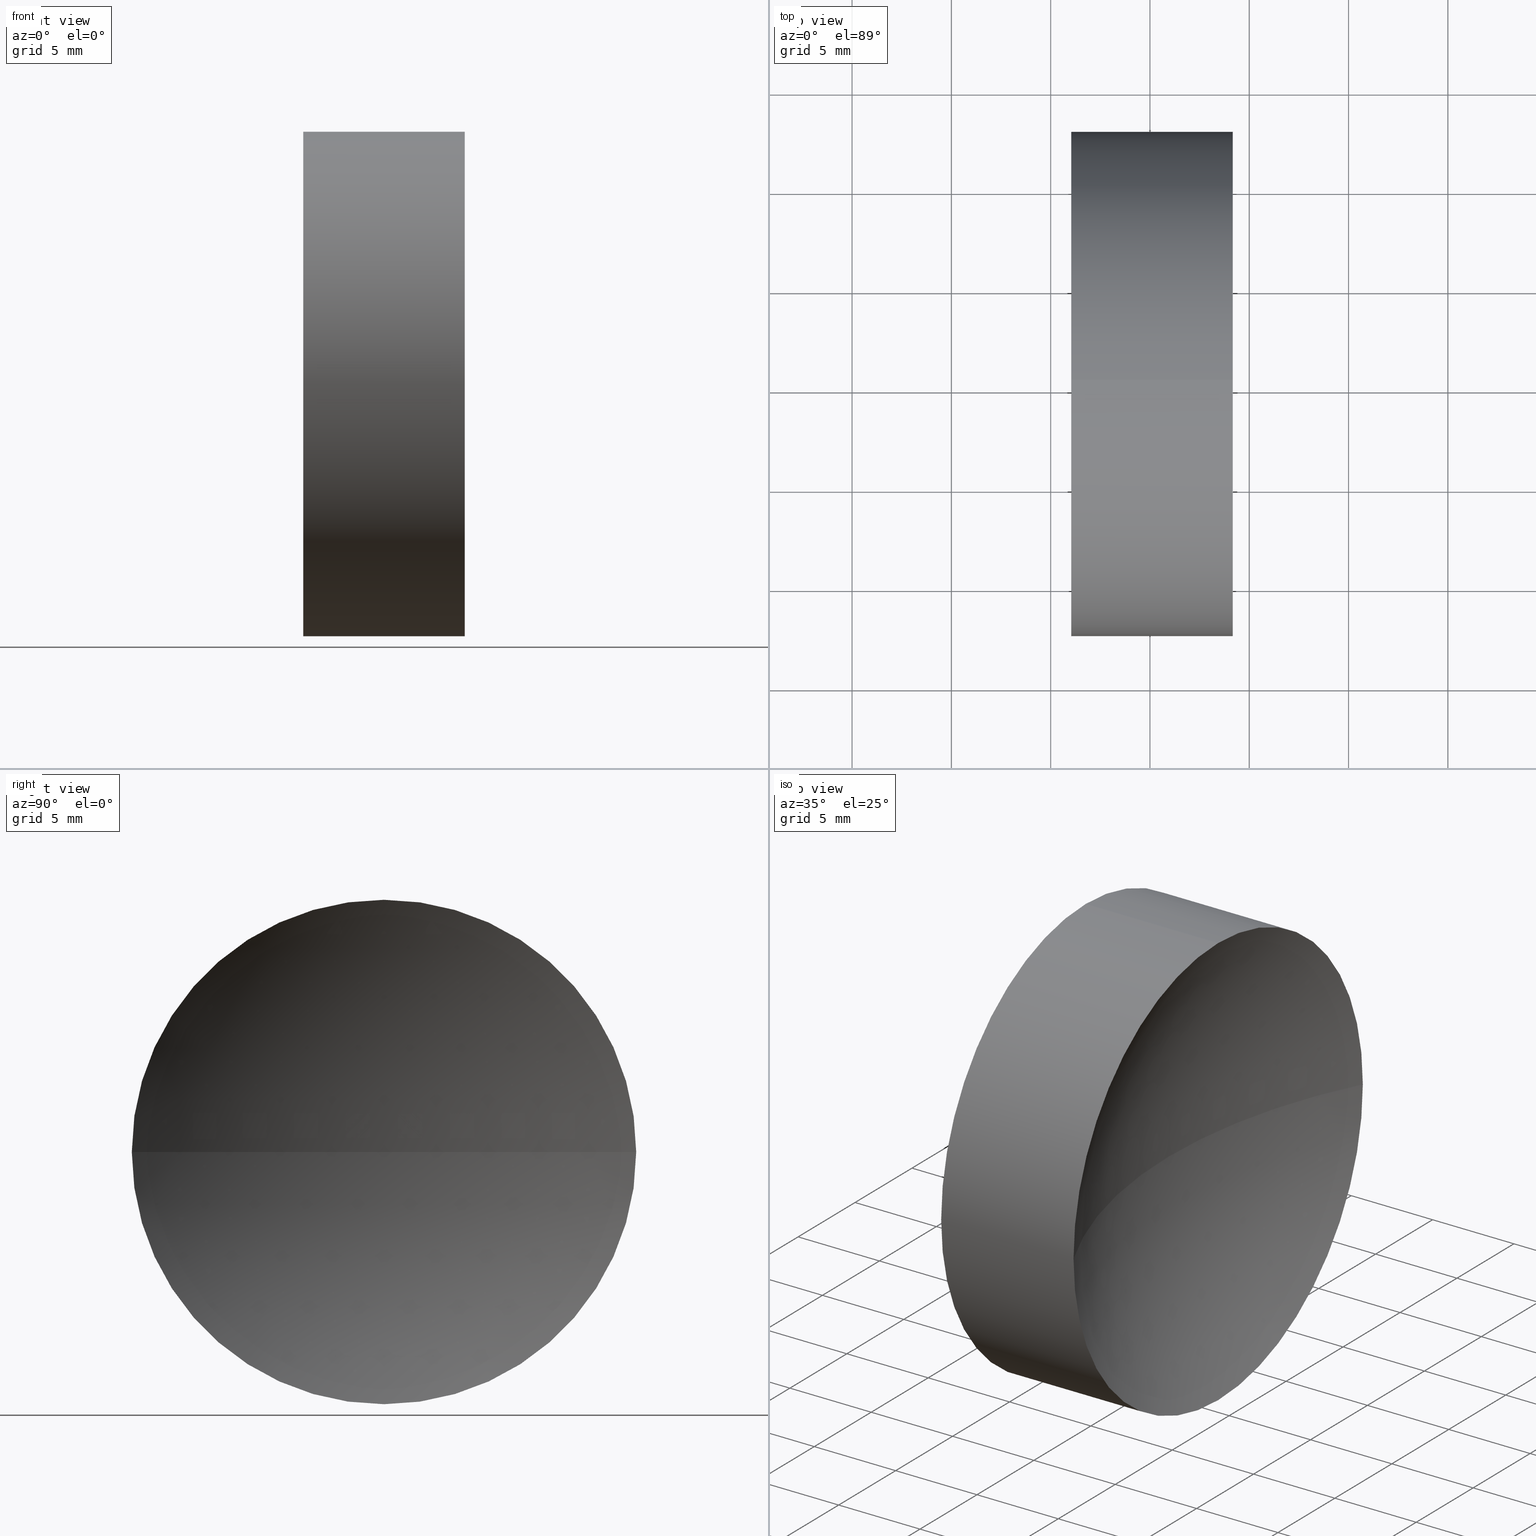
[diagram: canonical four-view strip — front | top / right | iso, engineering-drawing reading convention]
A machine part, canonical four-view strip (front | top / right | iso — engineering-drawing reading convention). The complete STEP part file that produces these views, byte-faithful:
ISO-10303-21;
HEADER;
FILE_DESCRIPTION (( 'STEP AP214' ),
    '1' );
FILE_NAME ('150057.STEP',
    '2019-07-02T05:53:10',
    ( '' ),
    ( '' ),
    'SwSTEP 2.0',
    'SolidWorks 2016',
    '' );
FILE_SCHEMA (( 'AUTOMOTIVE_DESIGN' ));
ENDSEC;

DATA;
#1 = DIRECTION ( 'NONE',  ( 0.0000000000000000000, 0.0000000000000000000, 1.000000000000000000 ) ) ;
#2 = VECTOR ( 'NONE', #51, 1000.000000000000000 ) ;
#3 = CARTESIAN_POINT ( 'NONE',  ( 124.1706853466884300, 65.22260287298739500, 12.70000000000000100 ) ) ;
#4 = CARTESIAN_POINT ( 'NONE',  ( 112.2414632947874400, 65.22260287298739500, 0.0000000000000000000 ) ) ;
#5 = CIRCLE ( 'NONE', #66, 12.70000000000000300 ) ;
#6 = DIRECTION ( 'NONE',  ( -1.000000000000000000, -0.0000000000000000000, -0.0000000000000000000 ) ) ;
#7 =( LENGTH_UNIT ( ) NAMED_UNIT ( * ) SI_UNIT ( .MILLI., .METRE. ) );
#8 = DIRECTION ( 'NONE',  ( 0.0000000000000000000, 1.000000000000000000, 1.224646799147353000E-016 ) ) ;
#9 = DIRECTION ( 'NONE',  ( 0.0000000000000000000, 1.224646799147353200E-016, -1.000000000000000000 ) ) ;
#10 = ADVANCED_FACE ( 'NONE', ( #196 ), #47, .T. ) ;
#11 = EDGE_CURVE ( 'NONE', #197, #229, #186, .T. ) ;
#12 = COLOUR_RGB ( '',1.000000000000000000, 1.000000000000000000, 1.000000000000000000 ) ;
#13 = PRODUCT_CONTEXT ( 'NONE', #85, 'mechanical' ) ;
#14 = PRESENTATION_LAYER_ASSIGNMENT (  '', '', ( #215 ) ) ;
#15 = APPLICATION_PROTOCOL_DEFINITION ( 'draft international standard', 'automotive_design', 1998, #29 ) ;
#16 = ORIENTED_EDGE ( 'NONE', *, *, #89, .F. ) ;
#17 = VECTOR ( 'NONE', #224, 1000.000000000000000 ) ;
#18 = CARTESIAN_POINT ( 'NONE',  ( 116.0347215457702200, 65.22260287298739500, 0.0000000000000000000 ) ) ;
#19 = CIRCLE ( 'NONE', #28, 12.70000000000000300 ) ;
#20 = CARTESIAN_POINT ( 'NONE',  ( 124.1706853466884300, 65.22260287298739500, 0.0000000000000000000 ) ) ;
#21 = PRODUCT_DEFINITION_FORMATION_WITH_SPECIFIED_SOURCE ( '�κ�', '', #194, .NOT_KNOWN. ) ;
#22 = CIRCLE ( 'NONE', #195, 27.82000000000001100 ) ;
#23 = CARTESIAN_POINT ( 'NONE',  ( 124.1706853466884300, 52.52260287298737800, -1.555301434917138400E-015 ) ) ;
#24 = CARTESIAN_POINT ( 'NONE',  ( 124.1706853466884300, 65.22260287298739500, -12.70000000000000100 ) ) ;
#25 = ADVANCED_FACE ( 'NONE', ( #119 ), #81, .F. ) ;
#26 = ORIENTED_EDGE ( 'NONE', *, *, #11, .T. ) ;
#27 = ADVANCED_FACE ( 'NONE', ( #157 ), #98, .T. ) ;
#28 = AXIS2_PLACEMENT_3D ( 'NONE', #178, #132, #73 ) ;
#29 = APPLICATION_CONTEXT ( 'automotive_design' ) ;
#30 = AXIS2_PLACEMENT_3D ( 'NONE', #115, #159, #95 ) ;
#31 = SPHERICAL_SURFACE ( 'NONE', #152, 27.82000000000000700 ) ;
#32 = ORIENTED_EDGE ( 'NONE', *, *, #11, .F. ) ;
#33 = ORIENTED_EDGE ( 'NONE', *, *, #96, .T. ) ;
#34 = MECHANICAL_DESIGN_GEOMETRIC_PRESENTATION_REPRESENTATION (  '', ( #227 ), #209 ) ;
#35 = ORIENTED_EDGE ( 'NONE', *, *, #70, .F. ) ;
#36 = DIRECTION ( 'NONE',  ( 0.0000000000000000000, 0.0000000000000000000, -1.000000000000000000 ) ) ;
#37 = ORIENTED_EDGE ( 'NONE', *, *, #218, .F. ) ;
#38 = DIRECTION ( 'NONE',  ( -1.000000000000000000, -0.0000000000000000000, -0.0000000000000000000 ) ) ;
#39 = AXIS2_PLACEMENT_3D ( 'NONE', #223, #182, #8 ) ;
#40 = CARTESIAN_POINT ( 'NONE',  ( 124.1706853466884300, 65.22260287298739500, 0.0000000000000000000 ) ) ;
#41 = CARTESIAN_POINT ( 'NONE',  ( 124.1706853466884300, 65.22260287298739500, 0.0000000000000000000 ) ) ;
#42 = FILL_AREA_STYLE_COLOUR ( '', #12 ) ;
#43 = ADVANCED_FACE ( 'NONE', ( #108 ), #31, .F. ) ;
#44 = ORIENTED_EDGE ( 'NONE', *, *, #74, .F. ) ;
#45 = PRODUCT_DEFINITION_SHAPE ( 'NONE', 'NONE',  #102 ) ;
#46 = EDGE_CURVE ( 'NONE', #105, #69, #22, .T. ) ;
#47 = CYLINDRICAL_SURFACE ( 'NONE', #175, 12.69999999999999600 ) ;
#48 = VERTEX_POINT ( 'NONE', #3 ) ;
#49 = CIRCLE ( 'NONE', #112, 12.70000000000000300 ) ;
#50 = ORIENTED_EDGE ( 'NONE', *, *, #46, .F. ) ;
#51 = DIRECTION ( 'NONE',  ( -1.000000000000000000, -0.0000000000000000000, -0.0000000000000000000 ) ) ;
#52 = PRODUCT_DEFINITION_CONTEXT ( 'detailed design', #29, 'design' ) ;
#53 = CARTESIAN_POINT ( 'NONE',  ( 148.9227034462293200, 65.22260287298738000, 0.0000000000000000000 ) ) ;
#54 = DIRECTION ( 'NONE',  ( -1.000000000000000000, -0.0000000000000000000, -0.0000000000000000000 ) ) ;
#55 = EDGE_CURVE ( 'NONE', #105, #197, #139, .T. ) ;
#56 = SPHERICAL_SURFACE ( 'NONE', #59, 27.82000000000000000 ) ;
#57 = CARTESIAN_POINT ( 'NONE',  ( 148.9227034462293200, 65.22260287298738000, 0.0000000000000000000 ) ) ;
#58 = CARTESIAN_POINT ( 'NONE',  ( 116.0347215457702200, 65.22260287298739500, 12.70000000000000300 ) ) ;
#59 = AXIS2_PLACEMENT_3D ( 'NONE', #133, #145, #203 ) ;
#60 = CARTESIAN_POINT ( 'NONE',  ( 124.1706853466884300, 77.92260287298739700, 0.0000000000000000000 ) ) ;
#61 = COLOUR_RGB ( '',1.000000000000000000, 1.000000000000000000, 1.000000000000000000 ) ;
#62 = ORIENTED_EDGE ( 'NONE', *, *, #74, .T. ) ;
#63 =( NAMED_UNIT ( * ) SI_UNIT ( $, .STERADIAN. ) SOLID_ANGLE_UNIT ( ) );
#64 = FILL_AREA_STYLE_COLOUR ( '', #61 ) ;
#65 = CIRCLE ( 'NONE', #166, 27.81999999999999700 ) ;
#66 = AXIS2_PLACEMENT_3D ( 'NONE', #41, #165, #121 ) ;
#67 = APPLICATION_PROTOCOL_DEFINITION ( 'draft international standard', 'automotive_design', 1998, #85 ) ;
#68 = SURFACE_SIDE_STYLE ('',( #176 ) ) ;
#69 = VERTEX_POINT ( 'NONE', #161 ) ;
#70 = EDGE_CURVE ( 'NONE', #110, #172, #49, .T. ) ;
#71 = ORIENTED_EDGE ( 'NONE', *, *, #70, .T. ) ;
#72 = CARTESIAN_POINT ( 'NONE',  ( 148.9227034462293200, 65.22260287298738000, 0.0000000000000000000 ) ) ;
#73 = DIRECTION ( 'NONE',  ( 0.0000000000000000000, 0.0000000000000000000, 1.000000000000000000 ) ) ;
#74 = EDGE_CURVE ( 'NONE', #231, #184, #65, .T. ) ;
#75 = CARTESIAN_POINT ( 'NONE',  ( 112.2414632947874400, 65.22260287298739500, 0.0000000000000000000 ) ) ;
#76 = ORIENTED_EDGE ( 'NONE', *, *, #193, .T. ) ;
#77 = DIRECTION ( 'NONE',  ( -1.000000000000000000, -0.0000000000000000000, -0.0000000000000000000 ) ) ;
#78 = CARTESIAN_POINT ( 'NONE',  ( 91.28270344622933400, 65.22260287298738000, 0.0000000000000000000 ) ) ;
#79 = PRODUCT_RELATED_PRODUCT_CATEGORY ( 'part', '', ( #194 ) ) ;
#80 = DIRECTION ( 'NONE',  ( 0.0000000000000000000, 0.0000000000000000000, 1.000000000000000000 ) ) ;
#81 = SPHERICAL_SURFACE ( 'NONE', #30, 27.82000000000000000 ) ;
#82 = ORIENTED_EDGE ( 'NONE', *, *, #96, .F. ) ;
#83 = DIRECTION ( 'NONE',  ( -1.000000000000000000, -0.0000000000000000000, -0.0000000000000000000 ) ) ;
#84 =( LENGTH_UNIT ( ) NAMED_UNIT ( * ) SI_UNIT ( .MILLI., .METRE. ) );
#85 = APPLICATION_CONTEXT ( 'automotive_design' ) ;
#86 = AXIS2_PLACEMENT_3D ( 'NONE', #205, #168, #138 ) ;
#87 =( LENGTH_UNIT ( ) NAMED_UNIT ( * ) SI_UNIT ( .MILLI., .METRE. ) );
#88 = ORIENTED_EDGE ( 'NONE', *, *, #201, .T. ) ;
#89 = EDGE_CURVE ( 'NONE', #184, #110, #19, .T. ) ;
#90 = AXIS2_PLACEMENT_3D ( 'NONE', #4, #180, #198 ) ;
#91 = CIRCLE ( 'NONE', #189, 12.70000000000000300 ) ;
#92 = FACE_OUTER_BOUND ( 'NONE', #190, .T. ) ;
#93 = DIRECTION ( 'NONE',  ( 0.0000000000000000000, 0.0000000000000000000, 1.000000000000000000 ) ) ;
#94 = AXIS2_PLACEMENT_3D ( 'NONE', #20, #38, #219 ) ;
#95 = DIRECTION ( 'NONE',  ( 0.0000000000000000000, 1.000000000000000000, 0.0000000000000000000 ) ) ;
#96 = EDGE_CURVE ( 'NONE', #197, #110, #208, .T. ) ;
#97 = DIRECTION ( 'NONE',  ( 1.000000000000000000, 0.0000000000000000000, 0.0000000000000000000 ) ) ;
#98 = CYLINDRICAL_SURFACE ( 'NONE', #90, 12.69999999999999600 ) ;
#99 = CARTESIAN_POINT ( 'NONE',  ( 119.1027034462293400, 65.22260287298738000, 0.0000000000000000000 ) ) ;
#100 = CARTESIAN_POINT ( 'NONE',  ( 116.0347215457702200, 65.22260287298739500, -12.70000000000000100 ) ) ;
#101 = ADVANCED_FACE ( 'NONE', ( #92 ), #155, .F. ) ;
#102 = PRODUCT_DEFINITION ( 'δ֪', '', #21, #52 ) ;
#103 = ORIENTED_EDGE ( 'NONE', *, *, #218, .T. ) ;
#104 = DIRECTION ( 'NONE',  ( 0.0000000000000000000, 0.0000000000000000000, 1.000000000000000000 ) ) ;
#105 = VERTEX_POINT ( 'NONE', #60 ) ;
#106 = CARTESIAN_POINT ( 'NONE',  ( 116.0347215457702200, 77.92260287298738300, 0.0000000000000000000 ) ) ;
#107 = PRESENTATION_STYLE_ASSIGNMENT (( #147 ) ) ;
#108 = FACE_OUTER_BOUND ( 'NONE', #153, .T. ) ;
#109 = ADVANCED_BREP_SHAPE_REPRESENTATION ( '150057', ( #212, #86 ), #162 ) ;
#110 = VERTEX_POINT ( 'NONE', #100 ) ;
#111 = DIRECTION ( 'NONE',  ( 0.0000000000000000000, 0.0000000000000000000, 1.000000000000000000 ) ) ;
#112 = AXIS2_PLACEMENT_3D ( 'NONE', #18, #54, #200 ) ;
#113 = DIRECTION ( 'NONE',  ( 0.0000000000000000000, 1.000000000000000000, 0.0000000000000000000 ) ) ;
#114 = LINE ( 'NONE', #222, #17 ) ;
#115 = CARTESIAN_POINT ( 'NONE',  ( 91.28270344622933400, 65.22260287298738000, 0.0000000000000000000 ) ) ;
#116 = DIRECTION ( 'NONE',  ( -1.000000000000000000, -0.0000000000000000000, -0.0000000000000000000 ) ) ;
#117 = DIRECTION ( 'NONE',  ( 0.0000000000000000000, 0.0000000000000000000, 1.000000000000000000 ) ) ;
#118 = CIRCLE ( 'NONE', #169, 27.81999999999999700 ) ;
#119 = FACE_OUTER_BOUND ( 'NONE', #216, .T. ) ;
#120 = CARTESIAN_POINT ( 'NONE',  ( 116.0347215457702200, 52.52260287298737800, -1.555301434917137800E-015 ) ) ;
#121 = DIRECTION ( 'NONE',  ( 0.0000000000000000000, 0.0000000000000000000, 1.000000000000000000 ) ) ;
#122 = DIRECTION ( 'NONE',  ( 0.0000000000000000000, 1.000000000000000000, 0.0000000000000000000 ) ) ;
#123 = AXIS2_PLACEMENT_3D ( 'NONE', #181, #77, #1 ) ;
#124 =( NAMED_UNIT ( * ) SI_UNIT ( $, .STERADIAN. ) SOLID_ANGLE_UNIT ( ) );
#125 = FILL_AREA_STYLE ('',( #64 ) ) ;
#126 = ORIENTED_EDGE ( 'NONE', *, *, #129, .T. ) ;
#127 = CIRCLE ( 'NONE', #141, 12.70000000000000300 ) ;
#128 = ORIENTED_EDGE ( 'NONE', *, *, #137, .F. ) ;
#129 = EDGE_CURVE ( 'NONE', #231, #172, #118, .T. ) ;
#130 = SHAPE_DEFINITION_REPRESENTATION ( #45, #109 ) ;
#131 = ORIENTED_EDGE ( 'NONE', *, *, #211, .T. ) ;
#132 = DIRECTION ( 'NONE',  ( -1.000000000000000000, -0.0000000000000000000, -0.0000000000000000000 ) ) ;
#133 = CARTESIAN_POINT ( 'NONE',  ( 91.28270344622933400, 65.22260287298738000, 0.0000000000000000000 ) ) ;
#134 = ORIENTED_EDGE ( 'NONE', *, *, #55, .F. ) ;
#135 = CARTESIAN_POINT ( 'NONE',  ( 116.0347215457702200, 65.22260287298739500, 0.0000000000000000000 ) ) ;
#136 = VERTEX_POINT ( 'NONE', #58 ) ;
#137 = EDGE_CURVE ( 'NONE', #229, #69, #191, .T. ) ;
#138 = DIRECTION ( 'NONE',  ( 1.000000000000000000, 0.0000000000000000000, 0.0000000000000000000 ) ) ;
#139 = CIRCLE ( 'NONE', #94, 12.70000000000000300 ) ;
#140 = CLOSED_SHELL ( 'NONE', ( #25, #27, #101, #43, #10, #146 ) ) ;
#141 = AXIS2_PLACEMENT_3D ( 'NONE', #220, #116, #117 ) ;
#142 = SURFACE_STYLE_FILL_AREA ( #150 ) ;
#143 = ORIENTED_EDGE ( 'NONE', *, *, #154, .T. ) ;
#144 = DIRECTION ( 'NONE',  ( 0.0000000000000000000, 0.0000000000000000000, 1.000000000000000000 ) ) ;
#145 = DIRECTION ( 'NONE',  ( 0.0000000000000000000, 0.0000000000000000000, -1.000000000000000000 ) ) ;
#146 = ADVANCED_FACE ( 'NONE', ( #213 ), #56, .F. ) ;
#147 = SURFACE_STYLE_USAGE ( .BOTH. , #188 ) ;
#148 = PRESENTATION_STYLE_ASSIGNMENT (( #207 ) ) ;
#149 = DIRECTION ( 'NONE',  ( 0.0000000000000000000, 1.000000000000000000, 1.224646799147353200E-016 ) ) ;
#150 = FILL_AREA_STYLE ('',( #42 ) ) ;
#151 =( NAMED_UNIT ( * ) SI_UNIT ( $, .STERADIAN. ) SOLID_ANGLE_UNIT ( ) );
#152 = AXIS2_PLACEMENT_3D ( 'NONE', #72, #36, #113 ) ;
#153 = EDGE_LOOP ( 'NONE', ( #128, #32, #134, #204 ) ) ;
#154 = EDGE_CURVE ( 'NONE', #48, #136, #114, .T. ) ;
#155 = SPHERICAL_SURFACE ( 'NONE', #232, 27.82000000000000700 ) ;
#156 = UNCERTAINTY_MEASURE_WITH_UNIT (LENGTH_MEASURE( 1.000000000000000100E-005 ), #84, 'distance_accuracy_value', 'NONE');
#157 = FACE_OUTER_BOUND ( 'NONE', #214, .T. ) ;
#158 = ORIENTED_EDGE ( 'NONE', *, *, #129, .F. ) ;
#159 = DIRECTION ( 'NONE',  ( 0.0000000000000000000, 0.0000000000000000000, -1.000000000000000000 ) ) ;
#160 = CARTESIAN_POINT ( 'NONE',  ( 112.2414632947874400, 65.22260287298739500, -12.69999999999999600 ) ) ;
#161 = CARTESIAN_POINT ( 'NONE',  ( 121.1027034462293100, 65.22260287298738000, 0.0000000000000000000 ) ) ;
#162 =( GEOMETRIC_REPRESENTATION_CONTEXT ( 3 ) GLOBAL_UNCERTAINTY_ASSIGNED_CONTEXT ( ( #228 ) ) GLOBAL_UNIT_ASSIGNED_CONTEXT ( ( #87, #171, #124 ) ) REPRESENTATION_CONTEXT ( 'NONE', 'WORKASPACE' ) );
#163 = CIRCLE ( 'NONE', #206, 12.70000000000000300 ) ;
#164 = ORIENTED_EDGE ( 'NONE', *, *, #211, .F. ) ;
#165 = DIRECTION ( 'NONE',  ( -1.000000000000000000, -0.0000000000000000000, -0.0000000000000000000 ) ) ;
#166 = AXIS2_PLACEMENT_3D ( 'NONE', #78, #111, #97 ) ;
#167 = ORIENTED_EDGE ( 'NONE', *, *, #55, .T. ) ;
#168 = DIRECTION ( 'NONE',  ( 0.0000000000000000000, 0.0000000000000000000, 1.000000000000000000 ) ) ;
#169 = AXIS2_PLACEMENT_3D ( 'NONE', #185, #9, #149 ) ;
#170 = ORIENTED_EDGE ( 'NONE', *, *, #137, .T. ) ;
#171 =( NAMED_UNIT ( * ) PLANE_ANGLE_UNIT ( ) SI_UNIT ( $, .RADIAN. ) );
#172 = VERTEX_POINT ( 'NONE', #120 ) ;
#173 = UNCERTAINTY_MEASURE_WITH_UNIT (LENGTH_MEASURE( 1.000000000000000100E-005 ), #7, 'distance_accuracy_value', 'NONE');
#174 = ORIENTED_EDGE ( 'NONE', *, *, #154, .F. ) ;
#175 = AXIS2_PLACEMENT_3D ( 'NONE', #75, #217, #93 ) ;
#176 = SURFACE_STYLE_FILL_AREA ( #125 ) ;
#177 = DIRECTION ( 'NONE',  ( 1.000000000000000000, 0.0000000000000000000, 0.0000000000000000000 ) ) ;
#178 = CARTESIAN_POINT ( 'NONE',  ( 116.0347215457702200, 65.22260287298739500, 0.0000000000000000000 ) ) ;
#179 = ORIENTED_EDGE ( 'NONE', *, *, #201, .F. ) ;
#180 = DIRECTION ( 'NONE',  ( -1.000000000000000000, -0.0000000000000000000, -0.0000000000000000000 ) ) ;
#181 = CARTESIAN_POINT ( 'NONE',  ( 124.1706853466884300, 65.22260287298739500, 0.0000000000000000000 ) ) ;
#182 = DIRECTION ( 'NONE',  ( 0.0000000000000000000, 1.224646799147353200E-016, -1.000000000000000000 ) ) ;
#183 = PRESENTATION_LAYER_ASSIGNMENT (  '', '', ( #227 ) ) ;
#184 = VERTEX_POINT ( 'NONE', #106 ) ;
#185 = CARTESIAN_POINT ( 'NONE',  ( 91.28270344622933400, 65.22260287298738000, 0.0000000000000000000 ) ) ;
#186 = CIRCLE ( 'NONE', #123, 12.70000000000000300 ) ;
#187 = ORIENTED_EDGE ( 'NONE', *, *, #193, .F. ) ;
#188 = SURFACE_SIDE_STYLE ('',( #142 ) ) ;
#189 = AXIS2_PLACEMENT_3D ( 'NONE', #40, #83, #104 ) ;
#190 = EDGE_LOOP ( 'NONE', ( #37, #170, #50, #179 ) ) ;
#191 = CIRCLE ( 'NONE', #39, 27.82000000000001100 ) ;
#192 = EDGE_LOOP ( 'NONE', ( #82, #26, #103, #143, #187, #35 ) ) ;
#193 = EDGE_CURVE ( 'NONE', #172, #136, #163, .T. ) ;
#194 = PRODUCT ( '150057', '150057', '', ( #13 ) ) ;
#195 = AXIS2_PLACEMENT_3D ( 'NONE', #53, #144, #177 ) ;
#196 = FACE_OUTER_BOUND ( 'NONE', #192, .T. ) ;
#197 = VERTEX_POINT ( 'NONE', #24 ) ;
#198 = DIRECTION ( 'NONE',  ( 0.0000000000000000000, 0.0000000000000000000, 1.000000000000000000 ) ) ;
#199 = DIRECTION ( 'NONE',  ( 0.0000000000000000000, 0.0000000000000000000, -1.000000000000000000 ) ) ;
#200 = DIRECTION ( 'NONE',  ( 0.0000000000000000000, 0.0000000000000000000, 1.000000000000000000 ) ) ;
#201 = EDGE_CURVE ( 'NONE', #48, #105, #91, .T. ) ;
#202 =( NAMED_UNIT ( * ) PLANE_ANGLE_UNIT ( ) SI_UNIT ( $, .RADIAN. ) );
#203 = DIRECTION ( 'NONE',  ( 0.0000000000000000000, 1.000000000000000000, 0.0000000000000000000 ) ) ;
#204 = ORIENTED_EDGE ( 'NONE', *, *, #46, .T. ) ;
#205 = CARTESIAN_POINT ( 'NONE',  ( 0.0000000000000000000, 0.0000000000000000000, 0.0000000000000000000 ) ) ;
#206 = AXIS2_PLACEMENT_3D ( 'NONE', #135, #6, #80 ) ;
#207 = SURFACE_STYLE_USAGE ( .BOTH. , #68 ) ;
#208 = LINE ( 'NONE', #160, #2 ) ;
#209 =( GEOMETRIC_REPRESENTATION_CONTEXT ( 3 ) GLOBAL_UNCERTAINTY_ASSIGNED_CONTEXT ( ( #156 ) ) GLOBAL_UNIT_ASSIGNED_CONTEXT ( ( #84, #226, #151 ) ) REPRESENTATION_CONTEXT ( 'NONE', 'WORKASPACE' ) );
#210 = EDGE_LOOP ( 'NONE', ( #158, #62, #225, #71 ) ) ;
#211 = EDGE_CURVE ( 'NONE', #136, #184, #127, .T. ) ;
#212 = MANIFOLD_SOLID_BREP ( '��ת1', #140 ) ;
#213 = FACE_OUTER_BOUND ( 'NONE', #210, .T. ) ;
#214 = EDGE_LOOP ( 'NONE', ( #167, #33, #16, #164, #174, #88 ) ) ;
#215 = STYLED_ITEM ( 'NONE', ( #107 ), #212 ) ;
#216 = EDGE_LOOP ( 'NONE', ( #44, #126, #76, #131 ) ) ;
#217 = DIRECTION ( 'NONE',  ( -1.000000000000000000, -0.0000000000000000000, -0.0000000000000000000 ) ) ;
#218 = EDGE_CURVE ( 'NONE', #229, #48, #5, .T. ) ;
#219 = DIRECTION ( 'NONE',  ( 0.0000000000000000000, 0.0000000000000000000, 1.000000000000000000 ) ) ;
#220 = CARTESIAN_POINT ( 'NONE',  ( 116.0347215457702200, 65.22260287298739500, 0.0000000000000000000 ) ) ;
#221 = MECHANICAL_DESIGN_GEOMETRIC_PRESENTATION_REPRESENTATION (  '', ( #215 ), #230 ) ;
#222 = CARTESIAN_POINT ( 'NONE',  ( 112.2414632947874400, 65.22260287298739500, 12.69999999999999600 ) ) ;
#223 = CARTESIAN_POINT ( 'NONE',  ( 148.9227034462293200, 65.22260287298738000, 0.0000000000000000000 ) ) ;
#224 = DIRECTION ( 'NONE',  ( -1.000000000000000000, -0.0000000000000000000, -0.0000000000000000000 ) ) ;
#225 = ORIENTED_EDGE ( 'NONE', *, *, #89, .T. ) ;
#226 =( NAMED_UNIT ( * ) PLANE_ANGLE_UNIT ( ) SI_UNIT ( $, .RADIAN. ) );
#227 = STYLED_ITEM ( 'NONE', ( #148 ), #109 ) ;
#228 = UNCERTAINTY_MEASURE_WITH_UNIT (LENGTH_MEASURE( 1.000000000000000100E-005 ), #87, 'distance_accuracy_value', 'NONE');
#229 = VERTEX_POINT ( 'NONE', #23 ) ;
#230 =( GEOMETRIC_REPRESENTATION_CONTEXT ( 3 ) GLOBAL_UNCERTAINTY_ASSIGNED_CONTEXT ( ( #173 ) ) GLOBAL_UNIT_ASSIGNED_CONTEXT ( ( #7, #202, #63 ) ) REPRESENTATION_CONTEXT ( 'NONE', 'WORKASPACE' ) );
#231 = VERTEX_POINT ( 'NONE', #99 ) ;
#232 = AXIS2_PLACEMENT_3D ( 'NONE', #57, #199, #122 ) ;
ENDSEC;
END-ISO-10303-21;
